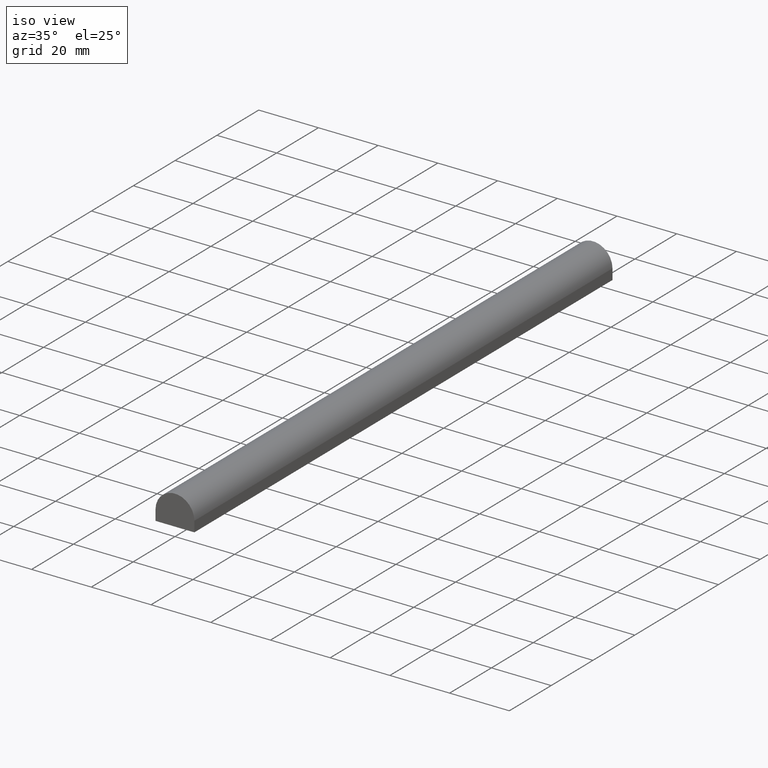
[diagram: clean part render]
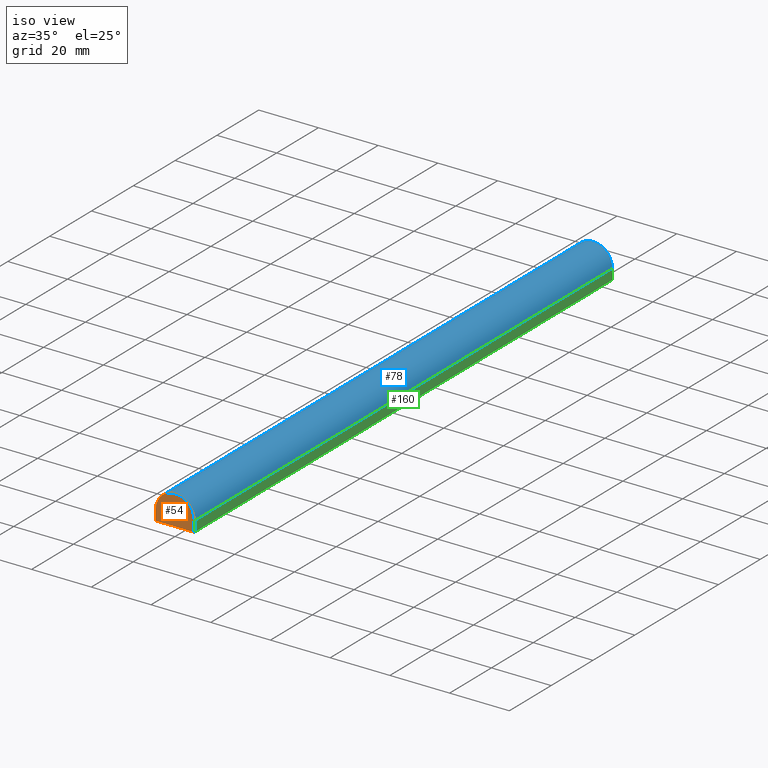
[diagram: same view with three faces highlighted in distinct colors, each labeled with its STEP entity id]
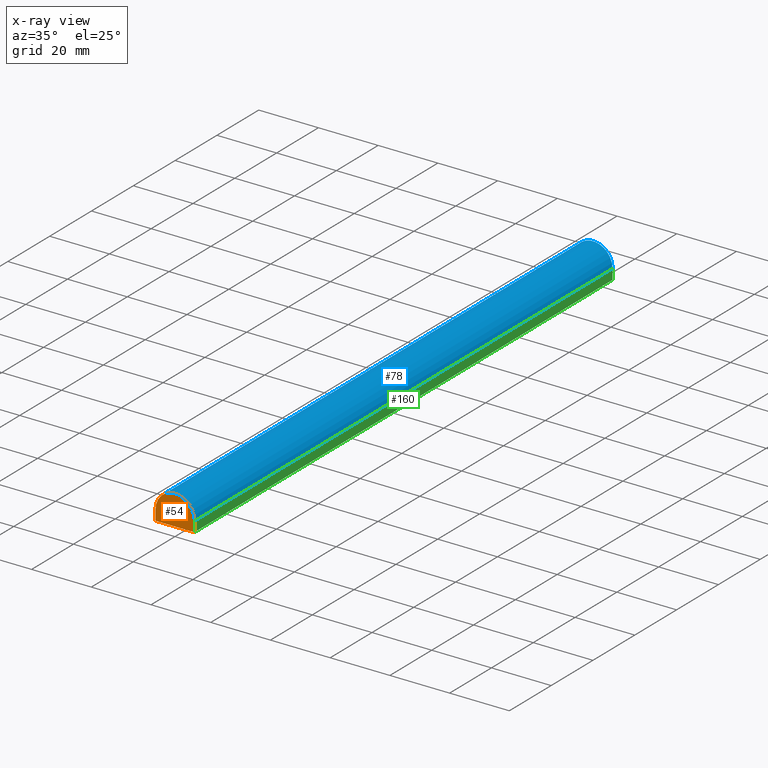
[diagram: x-ray of the same camera — body ghosted, the three highlighted faces saturated]
A machine part, iso view with three faces highlighted in distinct colors.
The next image is the same camera in x-ray (body ghosted, the three faces saturated) — at least one of them is partly hidden behind the body in this view.
Their STEP definitions:

[orange] entity #54 — the highlighted planar face has unit normal (0, 1, 0).
#5 = EDGE_LOOP ( 'NONE', ( #183, #76, #186, #222 ) ) ;
#17 = CARTESIAN_POINT ( 'NONE',  ( 6.500000000000000000, 0.0000000000000000000, -1.500000000000000000 ) ) ;
#18 = LINE ( 'NONE', #170, #143 ) ;
#20 = DIRECTION ( 'NONE',  ( 1.000000000000000000, 0.0000000000000000000, 0.0000000000000000000 ) ) ;
#23 = CARTESIAN_POINT ( 'NONE',  ( -6.500000000000000000, 0.0000000000000000000, -1.500000000000000000 ) ) ;
#25 = DIRECTION ( 'NONE',  ( -0.0000000000000000000, 1.000000000000000000, 0.0000000000000000000 ) ) ;
#26 = CARTESIAN_POINT ( 'NONE',  ( 0.0000000000000000000, 0.0000000000000000000, 0.0000000000000000000 ) ) ;
#31 = CARTESIAN_POINT ( 'NONE',  ( 6.500000000000000000, 0.0000000000000000000, 0.0000000000000000000 ) ) ;
#41 = LINE ( 'NONE', #51, #47 ) ;
#47 = VECTOR ( 'NONE', #110, 1000.000000000000000 ) ;
#49 = EDGE_CURVE ( 'NONE', #180, #238, #68, .T. ) ;
#51 = CARTESIAN_POINT ( 'NONE',  ( -6.500000000000000000, 0.0000000000000000000, 0.0000000000000000000 ) ) ;
#53 = DIRECTION ( 'NONE',  ( 0.0000000000000000000, 0.0000000000000000000, 1.000000000000000000 ) ) ;
#54 = ADVANCED_FACE ( 'NONE', ( #194 ), #147, .F. ) ;
#59 = DIRECTION ( 'NONE',  ( 1.000000000000000000, -0.0000000000000000000, -0.0000000000000000000 ) ) ;
#67 = CARTESIAN_POINT ( 'NONE',  ( 0.0000000000000000000, 0.0000000000000000000, -1.500000000000000000 ) ) ;
#68 = LINE ( 'NONE', #31, #162 ) ;
#75 = VERTEX_POINT ( 'NONE', #23 ) ;
#76 = ORIENTED_EDGE ( 'NONE', *, *, #49, .T. ) ;
#91 = VERTEX_POINT ( 'NONE', #192 ) ;
#95 = CIRCLE ( 'NONE', #101, 6.499999999999999100 ) ;
#101 = AXIS2_PLACEMENT_3D ( 'NONE', #67, #125, #53 ) ;
#102 = DIRECTION ( 'NONE',  ( -0.0000000000000000000, -0.0000000000000000000, 1.000000000000000000 ) ) ;
#105 = CARTESIAN_POINT ( 'NONE',  ( 6.500000000000000000, 0.0000000000000000000, -5.000000000000000000 ) ) ;
#108 = EDGE_CURVE ( 'NONE', #75, #91, #41, .T. ) ;
#110 = DIRECTION ( 'NONE',  ( -0.0000000000000000000, -0.0000000000000000000, -1.000000000000000000 ) ) ;
#122 = EDGE_CURVE ( 'NONE', #91, #180, #18, .T. ) ;
#125 = DIRECTION ( 'NONE',  ( -0.0000000000000000000, -1.000000000000000000, -0.0000000000000000000 ) ) ;
#143 = VECTOR ( 'NONE', #59, 1000.000000000000000 ) ;
#147 = PLANE ( 'NONE',  #204 ) ;
#162 = VECTOR ( 'NONE', #102, 1000.000000000000000 ) ;
#170 = CARTESIAN_POINT ( 'NONE',  ( 0.0000000000000000000, 0.0000000000000000000, -5.000000000000000000 ) ) ;
#180 = VERTEX_POINT ( 'NONE', #105 ) ;
#183 = ORIENTED_EDGE ( 'NONE', *, *, #122, .T. ) ;
#186 = ORIENTED_EDGE ( 'NONE', *, *, #210, .T. ) ;
#192 = CARTESIAN_POINT ( 'NONE',  ( -6.500000000000000000, 0.0000000000000000000, -5.000000000000000000 ) ) ;
#194 = FACE_OUTER_BOUND ( 'NONE', #5, .T. ) ;
#204 = AXIS2_PLACEMENT_3D ( 'NONE', #26, #25, #20 ) ;
#210 = EDGE_CURVE ( 'NONE', #238, #75, #95, .T. ) ;
#222 = ORIENTED_EDGE ( 'NONE', *, *, #108, .T. ) ;
#238 = VERTEX_POINT ( 'NONE', #17 ) ;

[blue] entity #78 — the highlighted cylindrical surface (edge-blend (fillet) strip) has radius 6.5 mm, axis along (0, -1, 0).
#17 = CARTESIAN_POINT ( 'NONE',  ( 6.500000000000000000, 0.0000000000000000000, -1.500000000000000000 ) ) ;
#21 = ORIENTED_EDGE ( 'NONE', *, *, #149, .F. ) ;
#23 = CARTESIAN_POINT ( 'NONE',  ( -6.500000000000000000, 0.0000000000000000000, -1.500000000000000000 ) ) ;
#24 = LINE ( 'NONE', #142, #65 ) ;
#32 = DIRECTION ( 'NONE',  ( 0.0000000000000000000, 0.0000000000000000000, -1.000000000000000000 ) ) ;
#36 = DIRECTION ( 'NONE',  ( 0.0000000000000000000, -1.000000000000000000, 0.0000000000000000000 ) ) ;
#53 = DIRECTION ( 'NONE',  ( 0.0000000000000000000, 0.0000000000000000000, 1.000000000000000000 ) ) ;
#61 = CARTESIAN_POINT ( 'NONE',  ( 0.0000000000000000000, 200.0000000000000000, -1.500000000000000000 ) ) ;
#64 = LINE ( 'NONE', #106, #92 ) ;
#65 = VECTOR ( 'NONE', #168, 1000.000000000000000 ) ;
#67 = CARTESIAN_POINT ( 'NONE',  ( 0.0000000000000000000, 0.0000000000000000000, -1.500000000000000000 ) ) ;
#74 = VERTEX_POINT ( 'NONE', #113 ) ;
#75 = VERTEX_POINT ( 'NONE', #23 ) ;
#78 = ADVANCED_FACE ( 'NONE', ( #212 ), #123, .T. ) ;
#82 = ORIENTED_EDGE ( 'NONE', *, *, #210, .F. ) ;
#92 = VECTOR ( 'NONE', #107, 1000.000000000000000 ) ;
#95 = CIRCLE ( 'NONE', #101, 6.499999999999999100 ) ;
#101 = AXIS2_PLACEMENT_3D ( 'NONE', #67, #125, #53 ) ;
#106 = CARTESIAN_POINT ( 'NONE',  ( -6.500000000000000000, 1000.000000000000000, -1.500000000000000000 ) ) ;
#107 = DIRECTION ( 'NONE',  ( 0.0000000000000000000, -1.000000000000000000, 0.0000000000000000000 ) ) ;
#111 = CARTESIAN_POINT ( 'NONE',  ( 6.500000000000000000, 200.0000000000000000, -1.500000000000000000 ) ) ;
#112 = ORIENTED_EDGE ( 'NONE', *, *, #196, .T. ) ;
#113 = CARTESIAN_POINT ( 'NONE',  ( -6.500000000000000000, 200.0000000000000000, -1.500000000000000000 ) ) ;
#114 = CARTESIAN_POINT ( 'NONE',  ( 0.0000000000000000000, 1000.000000000000000, -1.500000000000000000 ) ) ;
#120 = DIRECTION ( 'NONE',  ( 0.0000000000000000000, 0.0000000000000000000, 1.000000000000000000 ) ) ;
#123 = CYLINDRICAL_SURFACE ( 'NONE', #128, 6.500000000000000900 ) ;
#125 = DIRECTION ( 'NONE',  ( -0.0000000000000000000, -1.000000000000000000, -0.0000000000000000000 ) ) ;
#128 = AXIS2_PLACEMENT_3D ( 'NONE', #114, #36, #32 ) ;
#136 = CIRCLE ( 'NONE', #240, 6.499999999999999100 ) ;
#142 = CARTESIAN_POINT ( 'NONE',  ( 6.500000000000000000, 1000.000000000000000, -1.500000000000000000 ) ) ;
#149 = EDGE_CURVE ( 'NONE', #167, #238, #24, .T. ) ;
#167 = VERTEX_POINT ( 'NONE', #111 ) ;
#168 = DIRECTION ( 'NONE',  ( 0.0000000000000000000, -1.000000000000000000, 0.0000000000000000000 ) ) ;
#176 = EDGE_LOOP ( 'NONE', ( #82, #21, #112, #199 ) ) ;
#196 = EDGE_CURVE ( 'NONE', #167, #74, #136, .T. ) ;
#197 = DIRECTION ( 'NONE',  ( -0.0000000000000000000, -1.000000000000000000, -0.0000000000000000000 ) ) ;
#199 = ORIENTED_EDGE ( 'NONE', *, *, #230, .T. ) ;
#210 = EDGE_CURVE ( 'NONE', #238, #75, #95, .T. ) ;
#212 = FACE_OUTER_BOUND ( 'NONE', #176, .T. ) ;
#230 = EDGE_CURVE ( 'NONE', #74, #75, #64, .T. ) ;
#238 = VERTEX_POINT ( 'NONE', #17 ) ;
#240 = AXIS2_PLACEMENT_3D ( 'NONE', #61, #197, #120 ) ;

[green] entity #160 — the highlighted planar face has unit normal (1, 0, 0).
#17 = CARTESIAN_POINT ( 'NONE',  ( 6.500000000000000000, 0.0000000000000000000, -1.500000000000000000 ) ) ;
#24 = LINE ( 'NONE', #142, #65 ) ;
#31 = CARTESIAN_POINT ( 'NONE',  ( 6.500000000000000000, 0.0000000000000000000, 0.0000000000000000000 ) ) ;
#33 = CARTESIAN_POINT ( 'NONE',  ( 6.500000000000000000, 200.0000000000000000, -5.000000000000000000 ) ) ;
#48 = EDGE_CURVE ( 'NONE', #229, #180, #156, .T. ) ;
#49 = EDGE_CURVE ( 'NONE', #180, #238, #68, .T. ) ;
#52 = DIRECTION ( 'NONE',  ( 1.000000000000000000, 0.0000000000000000000, 0.0000000000000000000 ) ) ;
#56 = ORIENTED_EDGE ( 'NONE', *, *, #57, .T. ) ;
#57 = EDGE_CURVE ( 'NONE', #229, #167, #139, .T. ) ;
#65 = VECTOR ( 'NONE', #168, 1000.000000000000000 ) ;
#68 = LINE ( 'NONE', #31, #162 ) ;
#69 = ORIENTED_EDGE ( 'NONE', *, *, #149, .T. ) ;
#71 = PLANE ( 'NONE',  #87 ) ;
#86 = VECTOR ( 'NONE', #228, 1000.000000000000000 ) ;
#87 = AXIS2_PLACEMENT_3D ( 'NONE', #172, #52, #187 ) ;
#102 = DIRECTION ( 'NONE',  ( -0.0000000000000000000, -0.0000000000000000000, 1.000000000000000000 ) ) ;
#105 = CARTESIAN_POINT ( 'NONE',  ( 6.500000000000000000, 0.0000000000000000000, -5.000000000000000000 ) ) ;
#111 = CARTESIAN_POINT ( 'NONE',  ( 6.500000000000000000, 200.0000000000000000, -1.500000000000000000 ) ) ;
#132 = FACE_OUTER_BOUND ( 'NONE', #185, .T. ) ;
#139 = LINE ( 'NONE', #239, #231 ) ;
#142 = CARTESIAN_POINT ( 'NONE',  ( 6.500000000000000000, 1000.000000000000000, -1.500000000000000000 ) ) ;
#148 = ORIENTED_EDGE ( 'NONE', *, *, #49, .F. ) ;
#149 = EDGE_CURVE ( 'NONE', #167, #238, #24, .T. ) ;
#155 = ORIENTED_EDGE ( 'NONE', *, *, #48, .F. ) ;
#156 = LINE ( 'NONE', #203, #86 ) ;
#160 = ADVANCED_FACE ( 'NONE', ( #132 ), #71, .T. ) ;
#162 = VECTOR ( 'NONE', #102, 1000.000000000000000 ) ;
#167 = VERTEX_POINT ( 'NONE', #111 ) ;
#168 = DIRECTION ( 'NONE',  ( 0.0000000000000000000, -1.000000000000000000, 0.0000000000000000000 ) ) ;
#172 = CARTESIAN_POINT ( 'NONE',  ( 6.500000000000000000, 1000.000000000000000, -5.000000000000000000 ) ) ;
#180 = VERTEX_POINT ( 'NONE', #105 ) ;
#185 = EDGE_LOOP ( 'NONE', ( #148, #155, #56, #69 ) ) ;
#187 = DIRECTION ( 'NONE',  ( 0.0000000000000000000, 0.0000000000000000000, -1.000000000000000000 ) ) ;
#203 = CARTESIAN_POINT ( 'NONE',  ( 6.500000000000000000, 1000.000000000000000, -5.000000000000000000 ) ) ;
#224 = DIRECTION ( 'NONE',  ( -0.0000000000000000000, -0.0000000000000000000, 1.000000000000000000 ) ) ;
#228 = DIRECTION ( 'NONE',  ( 0.0000000000000000000, -1.000000000000000000, 0.0000000000000000000 ) ) ;
#229 = VERTEX_POINT ( 'NONE', #33 ) ;
#231 = VECTOR ( 'NONE', #224, 1000.000000000000000 ) ;
#238 = VERTEX_POINT ( 'NONE', #17 ) ;
#239 = CARTESIAN_POINT ( 'NONE',  ( 6.500000000000000000, 200.0000000000000000, 0.0000000000000000000 ) ) ;